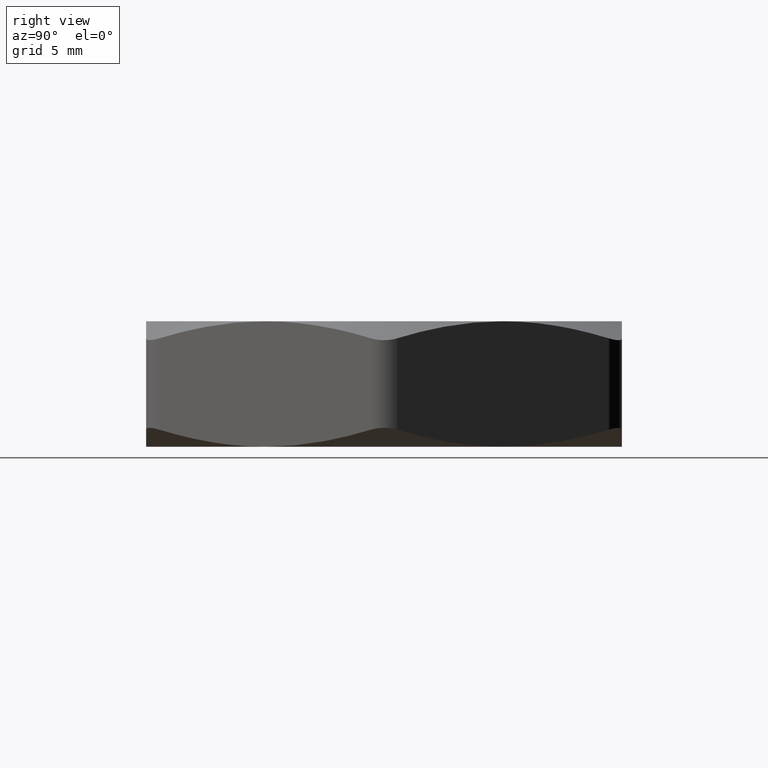
[diagram: clean part render]
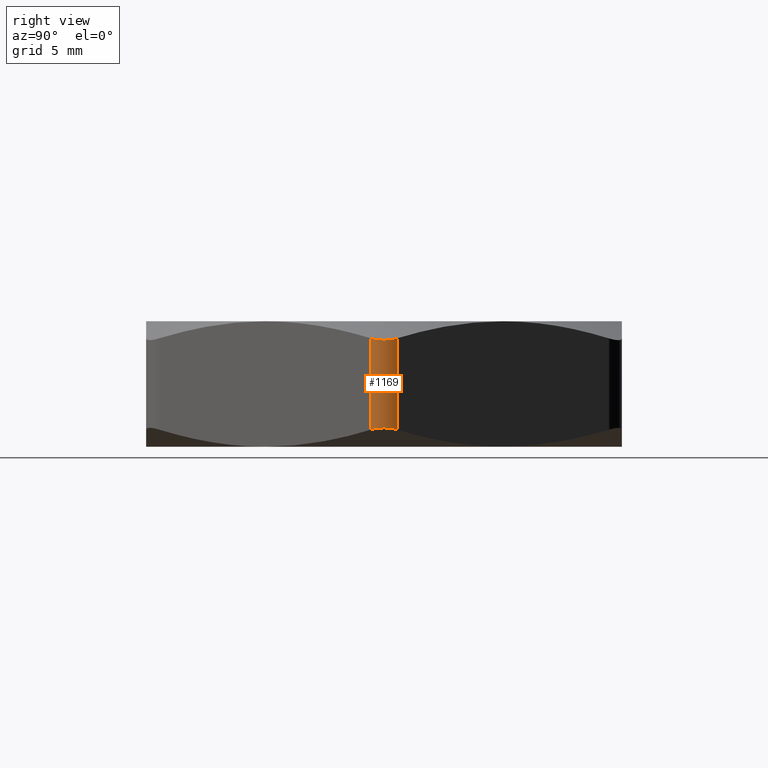
[diagram: same view with one face highlighted and labeled with its STEP entity id]
A machine part, right view. The second image highlights one B-rep face of the part: STEP entity #1169.
In plain terms, the highlighted cylindrical surface (edge-blend (fillet) strip) has radius 1.27 mm, axis along (0, 0, -1).
Its self-contained STEP definition (entity closure, byte-faithful):
#145 = CARTESIAN_POINT ( 'NONE',  ( 0.5109549882328113800, 0.02500000000001283500, 0.2073414762142364900 ) ) ;
#146 = CARTESIAN_POINT ( 'NONE',  ( 0.5176537180437228400, 1.439232789062687700E-014, 0.2038268590217328900 ) ) ;
#234 = CARTESIAN_POINT ( 'NONE',  ( 0.5147946611318553500, 0.01722272544729027900, 0.2053212469042510500 ) ) ;
#235 = CARTESIAN_POINT ( 'NONE',  ( 0.5170593666779570400, 0.008830213479940436300, 0.2041364365156505000 ) ) ;
#236 = CARTESIAN_POINT ( 'NONE',  ( 0.5176537180435947200, 0.004391119812516745500, 0.2038268590217996700 ) ) ;
#237 = CARTESIAN_POINT ( 'NONE',  ( 0.5176537180437228400, 1.439232789062687700E-014, 0.2038268590217328900 ) ) ;
#242 = B_SPLINE_CURVE_WITH_KNOTS ( 'NONE', 3,
 ( #237, #236, #235, #234, #2534, #2532 ),
 .UNSPECIFIED., .F., .F.,
 ( 4, 2, 4 ),
 ( 0.0006702464828151305300, 0.001004272962303260600, 0.001338299441791390400 ),
 .UNSPECIFIED. ) ;
#573 = CARTESIAN_POINT ( 'NONE',  ( 0.5109549882328010600, 0.02500000000003076500, 0.03265852378575818900 ) ) ;
#574 = DIRECTION ( 'NONE',  ( 0.0000000000000000000, 0.0000000000000000000, -1.000000000000000000 ) ) ;
#575 = VECTOR ( 'NONE', #574, 39.37007874015748100 ) ;
#576 = CARTESIAN_POINT ( 'NONE',  ( 0.5109549882328188200, 0.02500000000000001900, 0.2399999999999999900 ) ) ;
#577 = LINE ( 'NONE', #576, #575 ) ;
#717 = CARTESIAN_POINT ( 'NONE',  ( 0.5148001565488535800, -0.01720949734972865300, 0.03468163387755517100 ) ) ;
#718 = CARTESIAN_POINT ( 'NONE',  ( 0.5170650165982407800, -0.008802104174805236100, 0.03586651350329239000 ) ) ;
#799 = CARTESIAN_POINT ( 'NONE',  ( 0.5109549882328188200, -0.02499999999999986600, 0.2073414762142324900 ) ) ;
#800 = DIRECTION ( 'NONE',  ( 0.0000000000000000000, 0.0000000000000000000, 1.000000000000000000 ) ) ;
#801 = VECTOR ( 'NONE', #800, 39.37007874015748100 ) ;
#802 = CARTESIAN_POINT ( 'NONE',  ( 0.5109549882328188200, -0.02499999999999987000, 0.2399999999999999900 ) ) ;
#803 = LINE ( 'NONE', #802, #801 ) ;
#810 = CARTESIAN_POINT ( 'NONE',  ( 0.5109549882328113800, -0.02500000000001276500, 0.03265852378576349800 ) ) ;
#822 = CARTESIAN_POINT ( 'NONE',  ( 0.5176537180437228400, 1.439232789062687700E-014, 0.2038268590217328900 ) ) ;
#823 = CARTESIAN_POINT ( 'NONE',  ( 0.5176537180435991600, -0.004405537869985599400, 0.2038268590217974500 ) ) ;
#824 = CARTESIAN_POINT ( 'NONE',  ( 0.5170654117564056400, -0.008817167245223408300, 0.2041332663316080800 ) ) ;
#825 = CARTESIAN_POINT ( 'NONE',  ( 0.5147740847042175900, -0.01728956215661242900, 0.2053320194025672100 ) ) ;
#826 = CARTESIAN_POINT ( 'NONE',  ( 0.5131098711565360600, -0.02126763329175893400, 0.2062041486038134800 ) ) ;
#827 = CARTESIAN_POINT ( 'NONE',  ( 0.5109549882328188200, -0.02499999999999986600, 0.2073414762142324900 ) ) ;
#830 = B_SPLINE_CURVE_WITH_KNOTS ( 'NONE', 3,
 ( #827, #826, #825, #824, #823, #822 ),
 .UNSPECIFIED., .F., .F.,
 ( 4, 2, 4 ),
 ( 7.589415207398531000E-019, 0.0003351232414075656500, 0.0006702464828151305300 ),
 .UNSPECIFIED. ) ;
#940 = CARTESIAN_POINT ( 'NONE',  ( 0.5176575038464766900, -0.004354758607913779500, 0.03617511559322951500 ) ) ;
#941 = CARTESIAN_POINT ( 'NONE',  ( 0.5176498948249436100, 0.004441263829342938100, 0.03617114684769665000 ) ) ;
#942 = CARTESIAN_POINT ( 'NONE',  ( 0.5170596318599167700, 0.008845750843170486000, 0.03586371570928746600 ) ) ;
#943 = CARTESIAN_POINT ( 'NONE',  ( 0.5147686078461921600, 0.01730256590492920000, 0.03466510933364870500 ) ) ;
#944 = CARTESIAN_POINT ( 'NONE',  ( 0.5131063450007207200, 0.02127374077278671200, 0.03379399032299054700 ) ) ;
#945 = CARTESIAN_POINT ( 'NONE',  ( 0.5109549882328010600, 0.02500000000003076500, 0.03265852378575818900 ) ) ;
#946 = B_SPLINE_CURVE_WITH_KNOTS ( 'NONE', 3,
 ( #945, #944, #943, #942, #941, #940, #718, #717, #2535, #2536 ),
 .UNSPECIFIED., .F., .F.,
 ( 4, 2, 2, 2, 4 ),
 ( 1.450008029362912500E-016, 0.0003345748604479897900, 0.0006691497208958345200, 0.001003724581343679500, 0.001338299441791524200 ),
 .UNSPECIFIED. ) ;
#1126 = ORIENTED_EDGE ( 'NONE', *, *, #1601, .F. ) ;
#1169 = ADVANCED_FACE ( 'NONE', ( #2220 ), #2219, .T. ) ;
#1170 = EDGE_LOOP ( 'NONE', ( #1171, #1173, #1174, #1175, #1126 ) ) ;
#1171 = ORIENTED_EDGE ( 'NONE', *, *, #1935, .F. ) ;
#1173 = ORIENTED_EDGE ( 'NONE', *, *, #1924, .F. ) ;
#1174 = ORIENTED_EDGE ( 'NONE', *, *, #1986, .F. ) ;
#1175 = ORIENTED_EDGE ( 'NONE', *, *, #1766, .F. ) ;
#1553 = VERTEX_POINT ( 'NONE', #146 ) ;
#1554 = VERTEX_POINT ( 'NONE', #145 ) ;
#1601 = EDGE_CURVE ( 'NONE', #1553, #1554, #242, .T. ) ;
#1766 = EDGE_CURVE ( 'NONE', #1554, #1767, #577, .T. ) ;
#1767 = VERTEX_POINT ( 'NONE', #573 ) ;
#1922 = VERTEX_POINT ( 'NONE', #810 ) ;
#1924 = EDGE_CURVE ( 'NONE', #1922, #1925, #803, .T. ) ;
#1925 = VERTEX_POINT ( 'NONE', #799 ) ;
#1935 = EDGE_CURVE ( 'NONE', #1925, #1553, #830, .T. ) ;
#1986 = EDGE_CURVE ( 'NONE', #1767, #1922, #946, .T. ) ;
#2152 = DIRECTION ( 'NONE',  ( -1.000000000000000000, 0.0000000000000000000, 0.0000000000000000000 ) ) ;
#2153 = DIRECTION ( 'NONE',  ( 0.0000000000000000000, 0.0000000000000000000, -1.000000000000000000 ) ) ;
#2212 = CARTESIAN_POINT ( 'NONE',  ( 0.4676537180435969000, 4.695363739110452100E-017, 0.2399999999999999900 ) ) ;
#2213 = AXIS2_PLACEMENT_3D ( 'NONE', #2212, #2153, #2152 ) ;
#2219 = CYLINDRICAL_SURFACE ( 'NONE', #2213, 0.05000000000000001000 ) ;
#2220 = FACE_OUTER_BOUND ( 'NONE', #1170, .T. ) ;
#2532 = CARTESIAN_POINT ( 'NONE',  ( 0.5109549882328113800, 0.02500000000001283500, 0.2073414762142364900 ) ) ;
#2534 = CARTESIAN_POINT ( 'NONE',  ( 0.5131034996981049800, 0.02127866898148430800, 0.2062075114016308800 ) ) ;
#2535 = CARTESIAN_POINT ( 'NONE',  ( 0.5131070269716965200, -0.02127255956441122900, 0.03379435026129343200 ) ) ;
#2536 = CARTESIAN_POINT ( 'NONE',  ( 0.5109549882328113800, -0.02500000000001276500, 0.03265852378576349800 ) ) ;